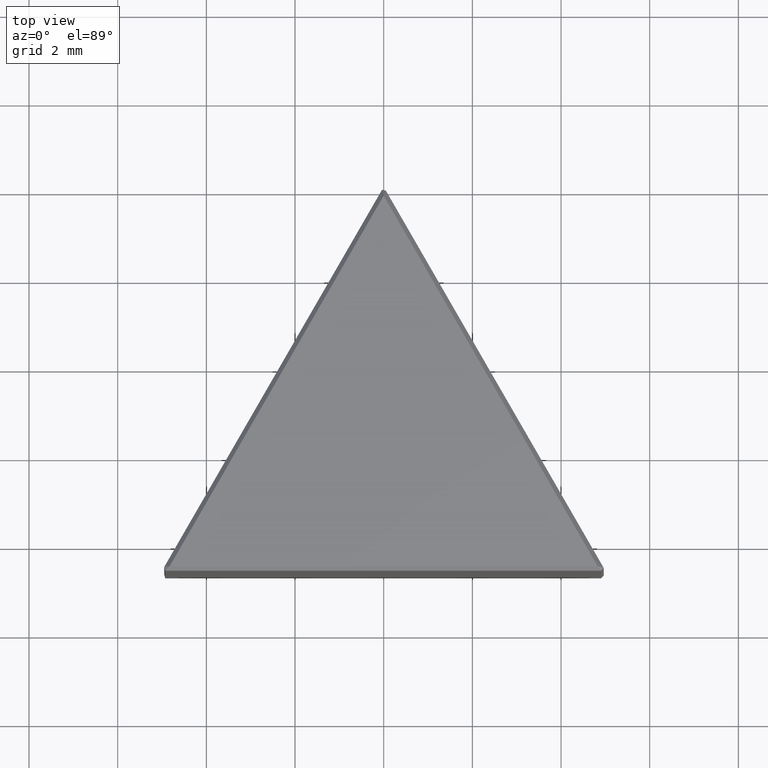
[diagram: clean part render]
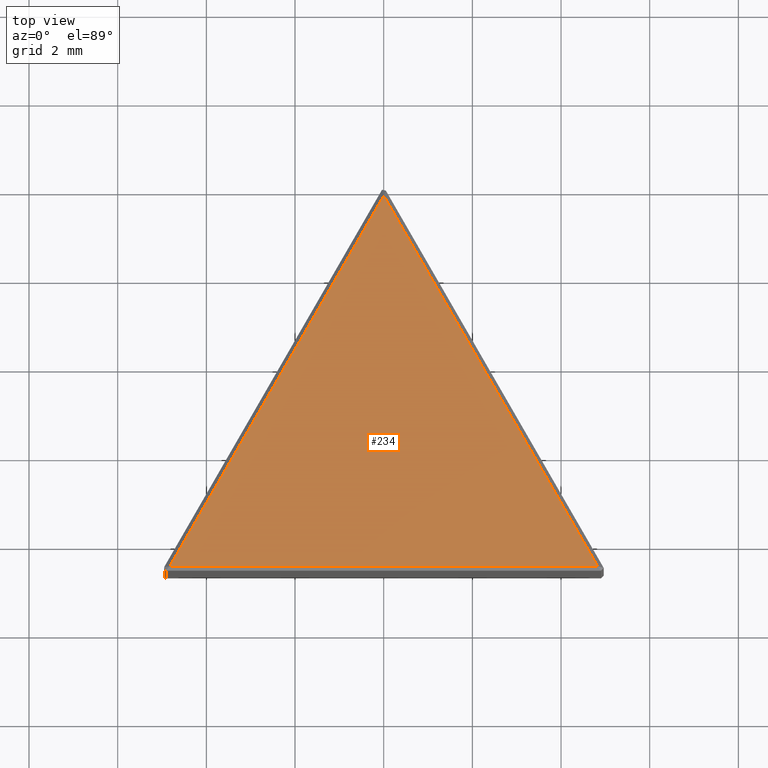
[diagram: same view with one face highlighted and labeled with its STEP entity id]
A machine part, top view. The second image highlights one B-rep face of the part: STEP entity #234.
In plain terms, the highlighted planar face has unit normal (0, 0, 1).
Its self-contained STEP definition (entity closure, byte-faithful):
#6 = CARTESIAN_POINT ( 'NONE',  ( -4.913397459621557495, -8.710254037844386232, 10.00000000000000000 ) ) ;
#21 = EDGE_CURVE ( 'NONE', #387, #414, #392, .T. ) ;
#60 = CARTESIAN_POINT ( 'NONE',  ( -5.085960881141425601E-17, -0.1999999999999986511, 10.00000000000000000 ) ) ;
#70 = VECTOR ( 'NONE', #469, 1000.000000000000114 ) ;
#109 = ORIENTED_EDGE ( 'NONE', *, *, #198, .T. ) ;
#180 = DIRECTION ( 'NONE',  ( 1.000000000000000000, 0.000000000000000000, -0.000000000000000000 ) ) ;
#193 = VECTOR ( 'NONE', #368, 1000.000000000000000 ) ;
#198 = EDGE_CURVE ( 'NONE', #414, #353, #437, .T. ) ;
#208 = CARTESIAN_POINT ( 'NONE',  ( 4.826794919243114101, -8.560254037844387653, 10.00000000000000000 ) ) ;
#210 = DIRECTION ( 'NONE',  ( 0.000000000000000000, 0.000000000000000000, 1.000000000000000000 ) ) ;
#234 = ADVANCED_FACE ( 'NONE', ( #257 ), #408, .T. ) ;
#257 = FACE_OUTER_BOUND ( 'NONE', #453, .T. ) ;
#275 = AXIS2_PLACEMENT_3D ( 'NONE', #444, #210, #180 ) ;
#290 = CARTESIAN_POINT ( 'NONE',  ( -4.826794919243114101, -8.560254037844387653, 10.00000000000000000 ) ) ;
#299 = ORIENTED_EDGE ( 'NONE', *, *, #21, .T. ) ;
#353 = VERTEX_POINT ( 'NONE', #208 ) ;
#363 = LINE ( 'NONE', #470, #374 ) ;
#368 = DIRECTION ( 'NONE',  ( 1.000000000000000000, 0.000000000000000000, 0.000000000000000000 ) ) ;
#374 = VECTOR ( 'NONE', #438, 1000.000000000000114 ) ;
#387 = VERTEX_POINT ( 'NONE', #60 ) ;
#392 = LINE ( 'NONE', #6, #70 ) ;
#408 = PLANE ( 'NONE',  #275 ) ;
#414 = VERTEX_POINT ( 'NONE', #290 ) ;
#415 = EDGE_CURVE ( 'NONE', #353, #387, #363, .T. ) ;
#437 = LINE ( 'NONE', #476, #193 ) ;
#438 = DIRECTION ( 'NONE',  ( -0.5000000000000001110, 0.8660254037844385966, 0.000000000000000000 ) ) ;
#444 = CARTESIAN_POINT ( 'NONE',  ( 0.000000000000000000, 0.000000000000000000, 10.00000000000000000 ) ) ;
#453 = EDGE_LOOP ( 'NONE', ( #299, #109, #489 ) ) ;
#469 = DIRECTION ( 'NONE',  ( -0.5000000000000001110, -0.8660254037844385966, 0.000000000000000000 ) ) ;
#470 = CARTESIAN_POINT ( 'NONE',  ( -0.08660254037844333785, -0.04999999999999970440, 10.00000000000000000 ) ) ;
#476 = CARTESIAN_POINT ( 'NONE',  ( 5.000000000000000000, -8.560254037844387653, 10.00000000000000000 ) ) ;
#489 = ORIENTED_EDGE ( 'NONE', *, *, #415, .T. ) ;